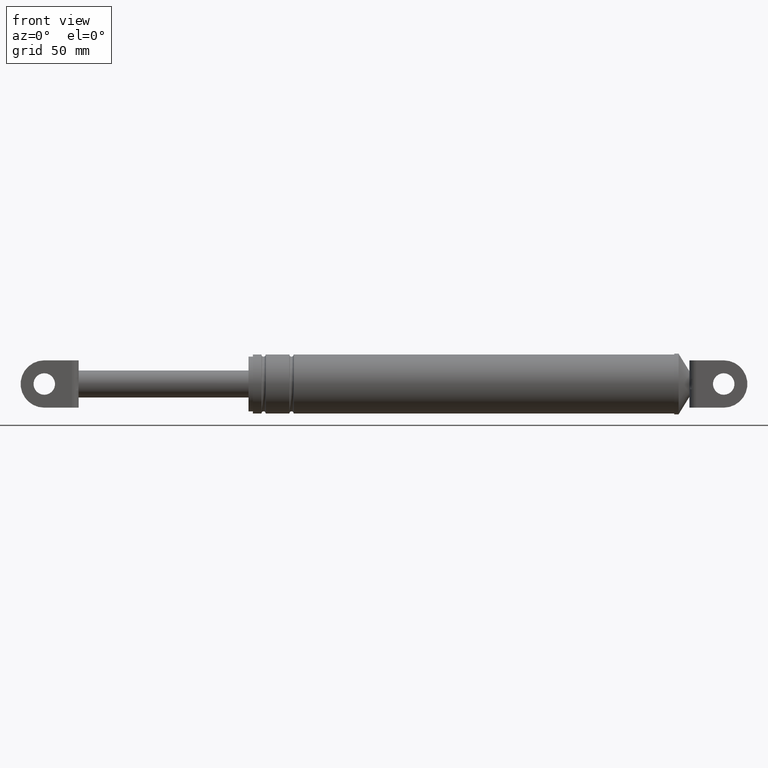
[diagram: clean part render]
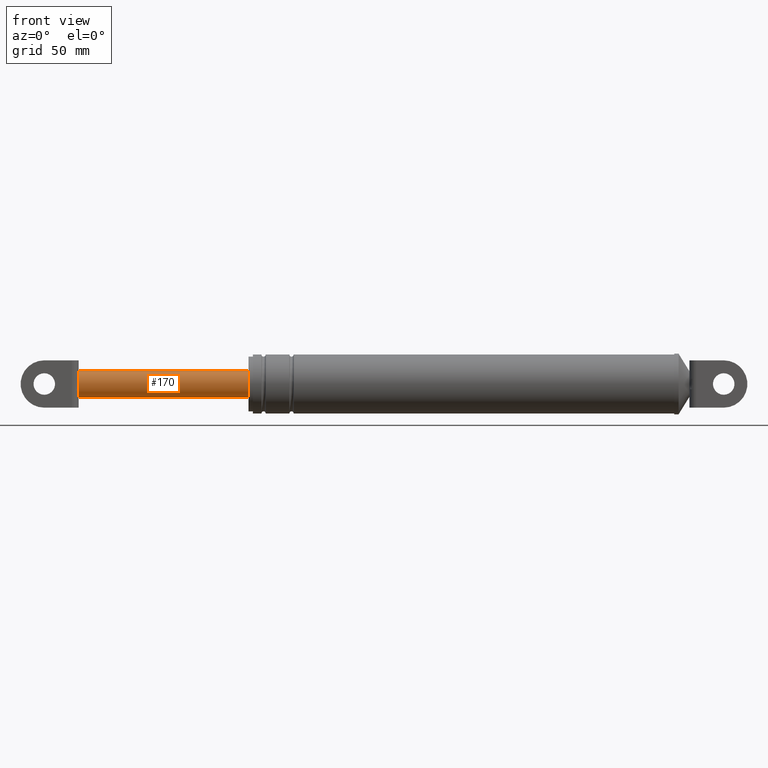
[diagram: same view with one face highlighted and labeled with its STEP entity id]
A machine part, front view. The second image highlights one B-rep face of the part: STEP entity #170.
In plain terms, the highlighted cylindrical surface (edge-blend (fillet) strip) has radius 6.25 mm, axis along (-1, -0, -0).
Its self-contained STEP definition (entity closure, byte-faithful):
#170=ADVANCED_FACE('',(#767),#766,.T.);
#766=CYLINDRICAL_SURFACE('',#1902,6.25000000000E+000);
#767=FACE_OUTER_BOUND('',#1903,.T.);
#1899=CARTESIAN_POINT('',(7.02714139120E+001,3.82702124734E-016,1.87814501197E+002));
#1900=DIRECTION('',(-1.00000000000E+000,-0.00000000000E+000,-0.00000000000E+000));
#1901=DIRECTION('',(0.00000000000E+000,6.93391490766E-014,-1.00000000000E+000));
#1902=AXIS2_PLACEMENT_3D('',#1899,#1900,#1901);
#1903=EDGE_LOOP('',(#2213,#2214,#2215,#2216,#2217,#2218));
#2213=ORIENTED_EDGE('',*,*,#2365,.F.);
#2214=ORIENTED_EDGE('',*,*,#2347,.F.);
#2215=ORIENTED_EDGE('',*,*,#2357,.F.);
#2216=ORIENTED_EDGE('',*,*,#2391,.F.);
#2217=ORIENTED_EDGE('',*,*,#2389,.F.);
#2218=ORIENTED_EDGE('',*,*,#2392,.T.);
#2347=EDGE_CURVE('',#3096,#3062,#3103,.T.);
#2357=EDGE_CURVE('',#3163,#3096,#3170,.T.);
#2365=EDGE_CURVE('',#3062,#3224,#3225,.T.);
#2389=EDGE_CURVE('',#3381,#3382,#3383,.T.);
#2391=EDGE_CURVE('',#3382,#3163,#3395,.T.);
#2392=EDGE_CURVE('',#3381,#3224,#3401,.T.);
#3062=VERTEX_POINT('',#3851);
#3096=VERTEX_POINT('',#3880);
#3103=CIRCLE('',#3888,6.25000000000E+000);
#3163=VERTEX_POINT('',#3929);
#3170=CIRCLE('',#3937,6.25000000000E+000);
#3224=VERTEX_POINT('',#3968);
#3225=CIRCLE('',#3972,6.25000000000E+000);
#3381=VERTEX_POINT('',#4063);
#3382=VERTEX_POINT('',#4064);
#3383=CIRCLE('',#4068,6.25000000000E+000);
#3395=(BOUNDED_CURVE() B_SPLINE_CURVE(1,(#4073,#4074),.UNSPECIFIED.,.F.,.F.) B_SPLINE_CURVE_WITH_KNOTS((2,2),(8.33333332085E-002,9.16666666563E-001),.UNSPECIFIED.) CURVE() GEOMETRIC_REPRESENTATION_ITEM() RATIONAL_B_SPLINE_CURVE((1.00000000000E+000,1.00000000000E+000)) REPRESENTATION_ITEM('') );
#3401=(BOUNDED_CURVE() B_SPLINE_CURVE(1,(#4075,#4076),.UNSPECIFIED.,.F.,.F.) B_SPLINE_CURVE_WITH_KNOTS((2,2),(8.33333333333E-002,9.16666666667E-001),.UNSPECIFIED.) CURVE() GEOMETRIC_REPRESENTATION_ITEM() RATIONAL_B_SPLINE_CURVE((7.50000000000E-001,7.50000000000E-001)) REPRESENTATION_ITEM('') );
#3851=CARTESIAN_POINT('',(7.81714139120E+001,-5.49999700000E+000,1.90783092276E+002));
#3880=CARTESIAN_POINT('',(7.81714139120E+001,-5.49999700000E+000,1.84845910117E+002));
#3885=CARTESIAN_POINT('',(7.81714139120E+001,-4.49418280368E-013,1.87814501196E+002));
#3886=DIRECTION('',(-1.00000000000E+000,-8.52651282912E-016,1.57973239552E-015));
#3887=DIRECTION('',(-0.00000000000E+000,8.79999520000E-001,4.74974572793E-001));
#3888=AXIS2_PLACEMENT_3D('',#3885,#3886,#3887);
#3929=CARTESIAN_POINT('',(7.81714139120E+001,-3.83939900940E-012,1.81564501197E+002));
#3934=CARTESIAN_POINT('',(7.81714139120E+001,7.94031507212E-013,1.87814501196E+002));
#3935=DIRECTION('',(-1.00000000000E+000,-2.63478623127E-016,-4.88154682721E-016));
#3936=DIRECTION('',(-0.00000000000E+000,-8.79999520000E-001,4.74974572793E-001));
#3937=AXIS2_PLACEMENT_3D('',#3934,#3935,#3936);
#3968=CARTESIAN_POINT('',(7.81714139120E+001,7.57709754158E-007,1.94064501197E+002));
#3969=CARTESIAN_POINT('',(7.81714139120E+001,2.67785793540E-013,1.87814501197E+002));
#3970=DIRECTION('',(-1.00000000000E+000,1.05391438099E-015,1.95261852427E-015));
#3971=DIRECTION('',(-0.00000000000E+000,8.79999520000E-001,-4.74974572793E-001));
#3972=AXIS2_PLACEMENT_3D('',#3969,#3970,#3971);
#4063=CARTESIAN_POINT('',(1.57171413912E+002,3.82702124734E-016,1.94064501197E+002));
#4064=CARTESIAN_POINT('',(1.57171413912E+002,8.88178419700E-016,1.81564501197E+002));
#4065=CARTESIAN_POINT('',(1.57171413912E+002,3.82702124734E-016,1.87814501197E+002));
#4066=DIRECTION('',(1.00000000000E+000,0.00000000000E+000,-0.00000000000E+000));
#4067=DIRECTION('',(0.00000000000E+000,-1.22460635382E-016,1.00000000000E+000));
#4068=AXIS2_PLACEMENT_3D('',#4065,#4066,#4067);
#4073=CARTESIAN_POINT('',(1.57171413924E+002,4.33752383853E-013,1.81564501197E+002));
#4074=CARTESIAN_POINT('',(7.81714139218E+001,4.33752383853E-013,1.81564501197E+002));
#4075=CARTESIAN_POINT('',(1.57171413912E+002,-4.33135009340E-013,1.94064501197E+002));
#4076=CARTESIAN_POINT('',(7.81714139120E+001,-4.33135009340E-013,1.94064501197E+002));